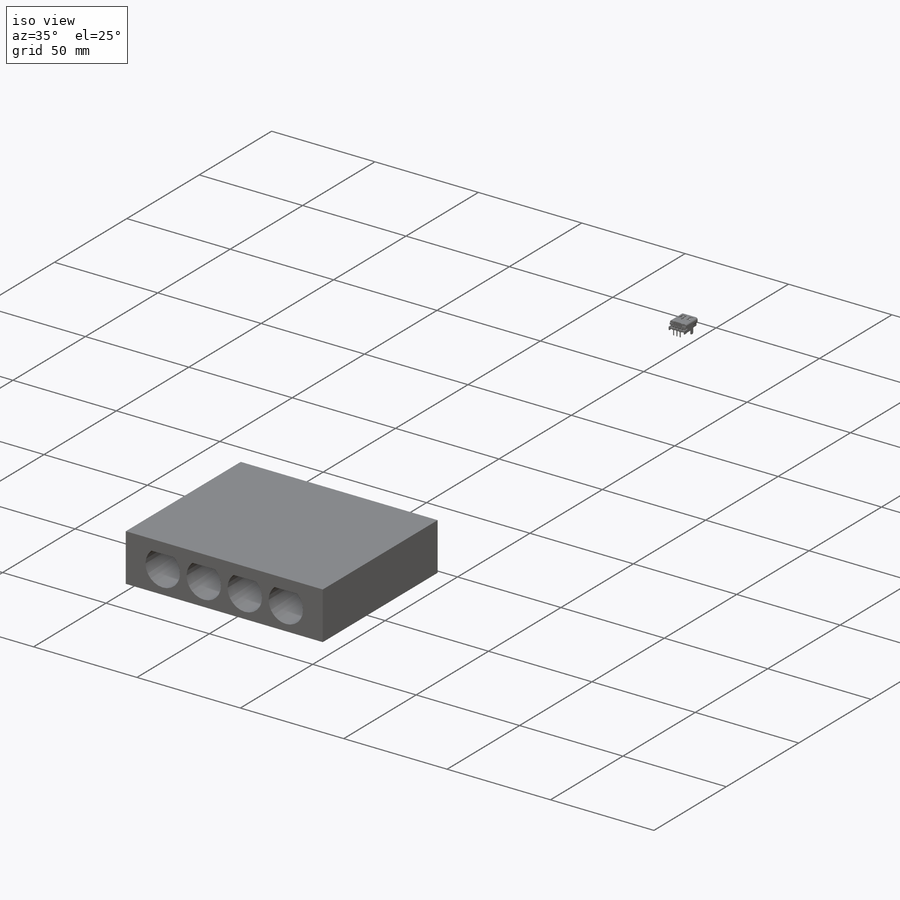
[diagram: iso view]
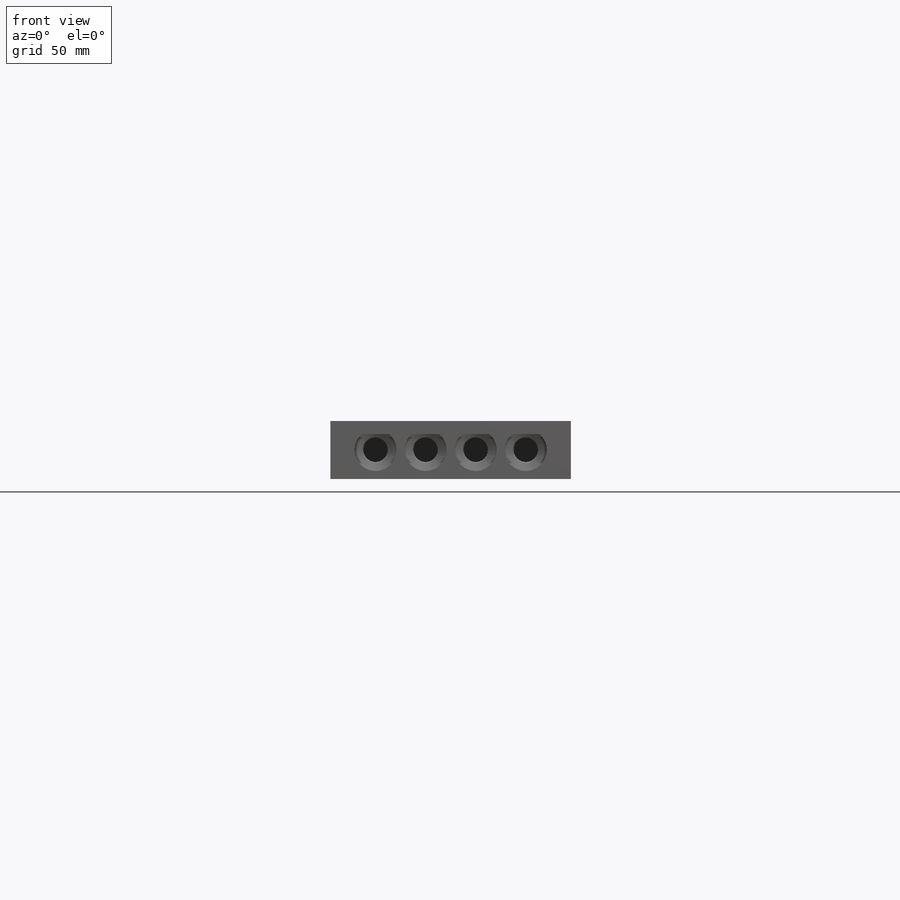
[diagram: front view]
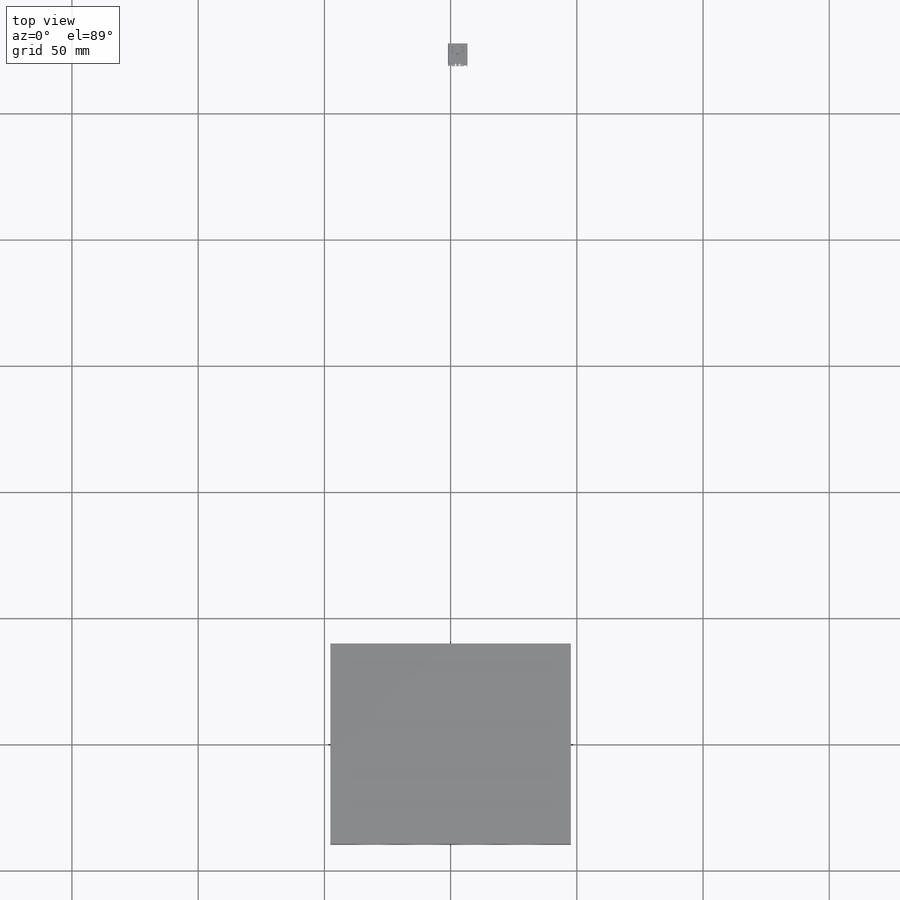
[diagram: top view]
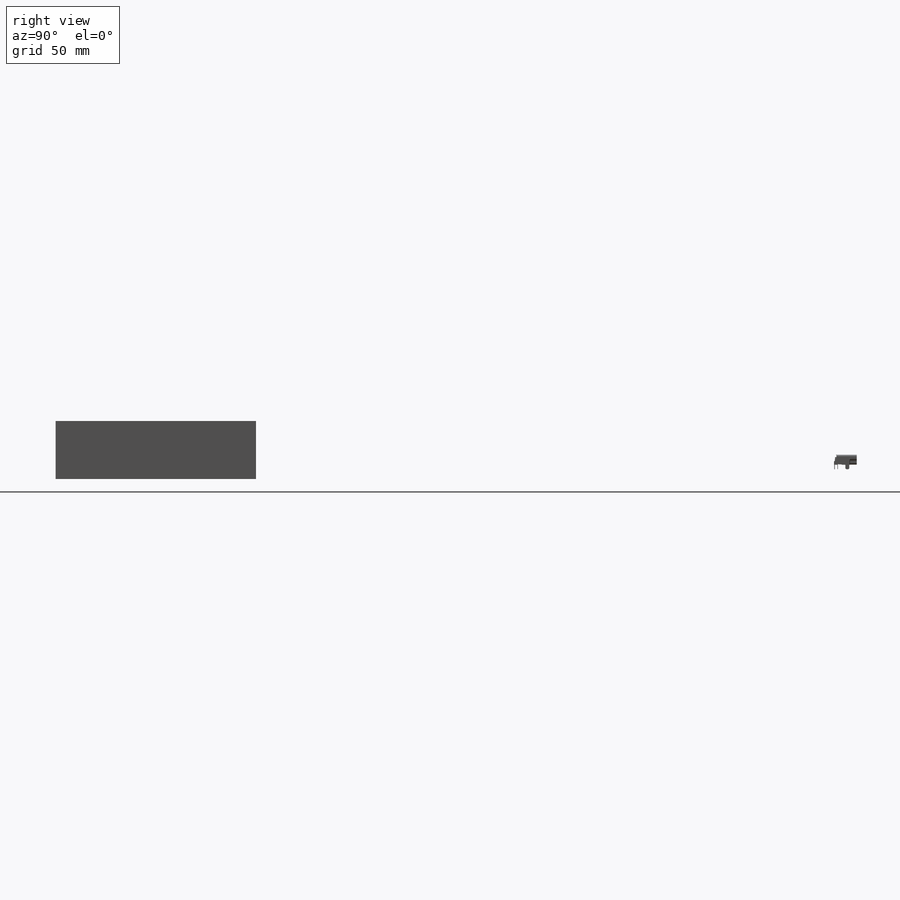
[diagram: right view]
SOLIDWORKS PART (.sldprt)
format: sldprt  version: not decoded by parser v0  size: 1,113,600 bytes
history: native  units: mm
features: sketch x8, cut_extrude x4, extrude x3, material x1, surface_op x1, dome x1, move_body x1 + 1 further entry (+16 scaffold rows collapsed; 3 parser-record rows omitted)
feature tree (39):
  scaffold x16  (default folders/planes/origin — collapsed)
  material  "Material <not specified>"
  sketch  "Sketch1"  dims[D1=95.25mm D2=79.375mm]
  extrude  "Boss-Extrude1"  Depth=23.01875mm
  sketch  "Sketch2"  dims[D1=9.525mm D2=~16.66875mm D3=3.175mm D4=~14.684375mm D5=3.175mm]
  cut_extrude  "Cut-Extrude1"  Depth=13.49375mm
  sketch  "Sketch3"
  cut_extrude  "Cut-Extrude2"  Depth=7.14375mm
  sketch  "Sketch5"
  surface_op  "Surface-Extrude1"
  dome  "Dome6"
  sketch  "Sketch8"  dims[D1=~10.31875mm]
  cut_extrude  "Cut-Extrude5"  Depth=10.31875mm
  sketch  "Sketch10"  dims[D1=~30.955716mm D2=3.175mm D3=3.175mm D4=3.175mm]
  cut_extrude  "Cut-Extrude6"  Depth=3.175mm
  sketch  "Sketch12"  dims[D5=5.715mm D6=5.715mm D1=3.81mm D2=8.255mm D3=30.48mm D4=9.525mm]
  extrude  "Boss-Extrude2"  Depth=3.175mm
  sketch  "Sketch13"  dims[D1=3.175mm D2=3.175mm]
  extrude  "Boss-Extrude3"  [1 undecoded]
  "USB-Mini-B"
  parser-record x3  (decoder bookkeeping rows leaked as tree rows — omitted from the tree; the rows remain in map.json)
  move_body  "Body-Move/Copy2"
decode coverage: 12 of 18 modeling features carry decoded parameters; 1 rows unclassified (native names shown)
note: ~ marks probable driven/reference dimensions
note: 1 parameter value undecoded
note: suppression state not decoded; provenance and decode notes live in map.json
